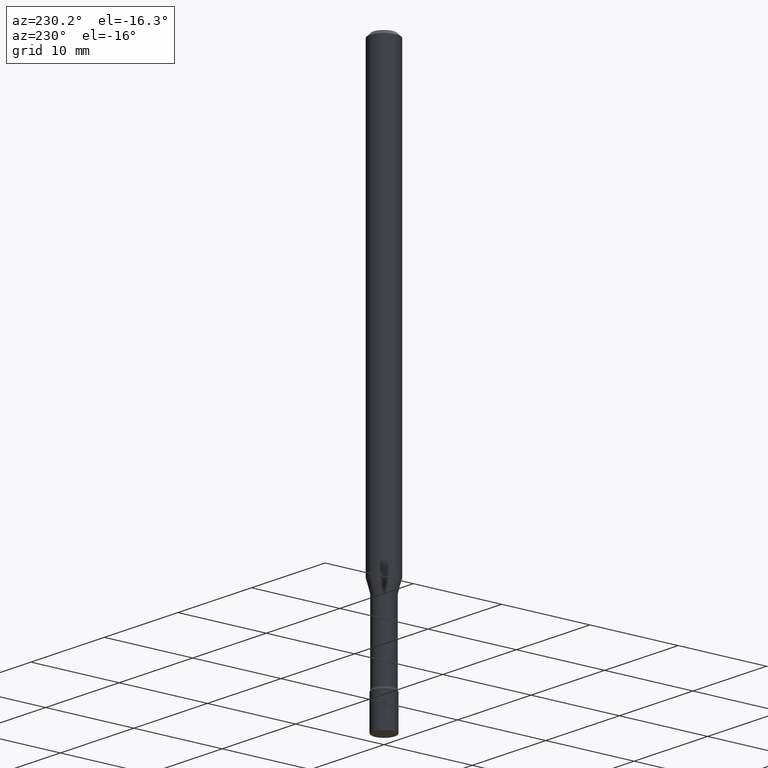
[diagram: clean part render]
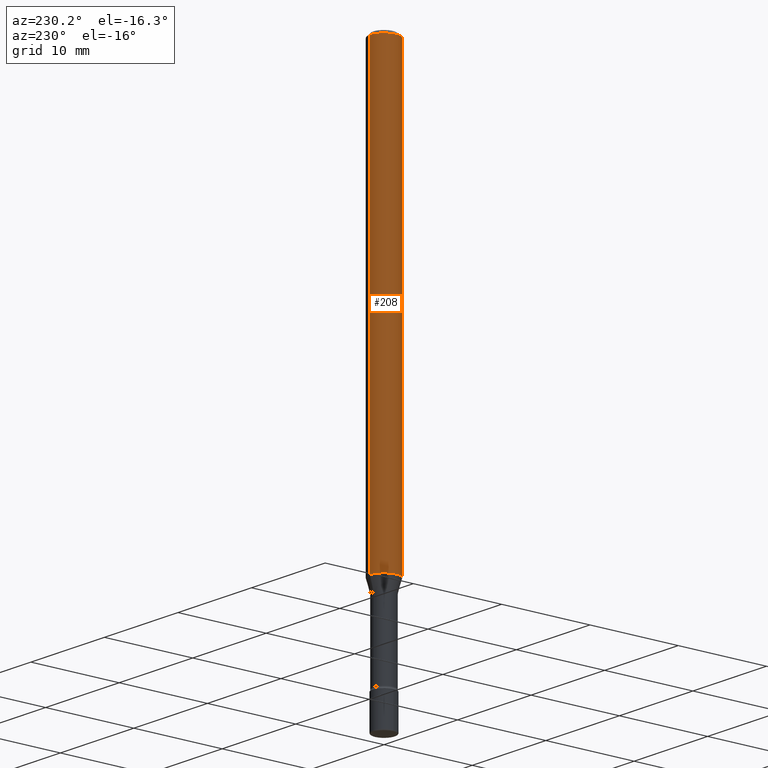
[diagram: same view with one face highlighted and labeled with its STEP entity id]
A machine part, auxiliary view. The second image highlights one B-rep face of the part: STEP entity #208.
In plain terms, the highlighted cylindrical surface (edge-blend (fillet) strip) has radius 1.5875 mm, axis along (-0, 0, 1).
Its self-contained STEP definition (entity closure, byte-faithful):
#15 = AXIS2_PLACEMENT_3D ( 'NONE', #35, #299, #121 ) ;
#26 = VERTEX_POINT ( 'NONE', #179 ) ;
#29 = LINE ( 'NONE', #517, #206 ) ;
#35 = CARTESIAN_POINT ( 'NONE',  ( 3.668312142123745187E-31, -5.237066010229135864E-17, -0.01500000000000002720 ) ) ;
#57 = AXIS2_PLACEMENT_3D ( 'NONE', #451, #293, #332 ) ;
#68 = ORIENTED_EDGE ( 'NONE', *, *, #354, .T. ) ;
#81 = EDGE_CURVE ( 'NONE', #530, #340, #452, .T. ) ;
#95 = AXIS2_PLACEMENT_3D ( 'NONE', #505, #103, #283 ) ;
#103 = DIRECTION ( 'NONE',  ( -2.445541428082492260E-29, 3.491377340152750324E-15, 1.000000000000000000 ) ) ;
#121 = DIRECTION ( 'NONE',  ( -6.982962677686265922E-15, -1.000000000000000000, 3.483106191921935554E-15 ) ) ;
#179 = CARTESIAN_POINT ( 'NONE',  ( 4.440892098501103423E-16, 0.06249999999999993755, -0.01500000000000024578 ) ) ;
#206 = VECTOR ( 'NONE', #298, 39.37007874015748143 ) ;
#208 = ADVANCED_FACE ( 'NONE', ( #330 ), #243, .T. ) ;
#226 = CIRCLE ( 'NONE', #15, 0.06250000000000000000 ) ;
#230 = CARTESIAN_POINT ( 'NONE',  ( 4.440892098501102436E-16, 0.06249999999999325540, -1.942153212482682800 ) ) ;
#236 = CARTESIAN_POINT ( 'NONE',  ( -4.364351673553912750E-16, -0.06250000000000005551, -0.01499999999999981036 ) ) ;
#243 = CYLINDRICAL_SURFACE ( 'NONE', #95, 0.06250000000000000000 ) ;
#254 = CARTESIAN_POINT ( 'NONE',  ( -4.364351673553916201E-16, -0.06250000000000000000, 6.962844826507930571E-16 ) ) ;
#259 = EDGE_CURVE ( 'NONE', #26, #475, #226, .T. ) ;
#265 = CARTESIAN_POINT ( 'NONE',  ( -4.364351673553439433E-16, -0.06250000000000675848, -1.942153212482682134 ) ) ;
#277 = VECTOR ( 'NONE', #431, 39.37007874015748143 ) ;
#283 = DIRECTION ( 'NONE',  ( -6.982962677686265922E-15, -1.000000000000000000, 3.491377340152751112E-15 ) ) ;
#293 = DIRECTION ( 'NONE',  ( -2.445541428082492260E-29, 3.491377340152750324E-15, 1.000000000000000000 ) ) ;
#298 = DIRECTION ( 'NONE',  ( -2.445541428082492260E-29, 3.491377340152750324E-15, 1.000000000000000000 ) ) ;
#299 = DIRECTION ( 'NONE',  ( -2.445541428082492260E-29, 3.491377340152750324E-15, 1.000000000000000000 ) ) ;
#303 = ORIENTED_EDGE ( 'NONE', *, *, #81, .T. ) ;
#330 = FACE_OUTER_BOUND ( 'NONE', #445, .T. ) ;
#332 = DIRECTION ( 'NONE',  ( -6.982962677686265922E-15, -1.000000000000000000, 4.370956789862821150E-15 ) ) ;
#340 = VERTEX_POINT ( 'NONE', #265 ) ;
#349 = EDGE_CURVE ( 'NONE', #530, #26, #29, .T. ) ;
#354 = EDGE_CURVE ( 'NONE', #340, #475, #470, .T. ) ;
#431 = DIRECTION ( 'NONE',  ( -2.445541428082492260E-29, 3.491377340152750324E-15, 1.000000000000000000 ) ) ;
#436 = ORIENTED_EDGE ( 'NONE', *, *, #349, .F. ) ;
#441 = ORIENTED_EDGE ( 'NONE', *, *, #259, .F. ) ;
#445 = EDGE_LOOP ( 'NONE', ( #436, #303, #68, #441 ) ) ;
#451 = CARTESIAN_POINT ( 'NONE',  ( 4.749616140809899417E-29, -6.780789717166906576E-15, -1.942153212482682578 ) ) ;
#452 = CIRCLE ( 'NONE', #57, 0.06250000000000000000 ) ;
#470 = LINE ( 'NONE', #254, #277 ) ;
#475 = VERTEX_POINT ( 'NONE', #236 ) ;
#505 = CARTESIAN_POINT ( 'NONE',  ( -1.169113584055446105E-44, 1.669184350826100908E-30, 4.780733988912460139E-16 ) ) ;
#517 = CARTESIAN_POINT ( 'NONE',  ( 4.440892098500625669E-16, 0.06250000000000000000, 2.598623151316991680E-16 ) ) ;
#530 = VERTEX_POINT ( 'NONE', #230 ) ;